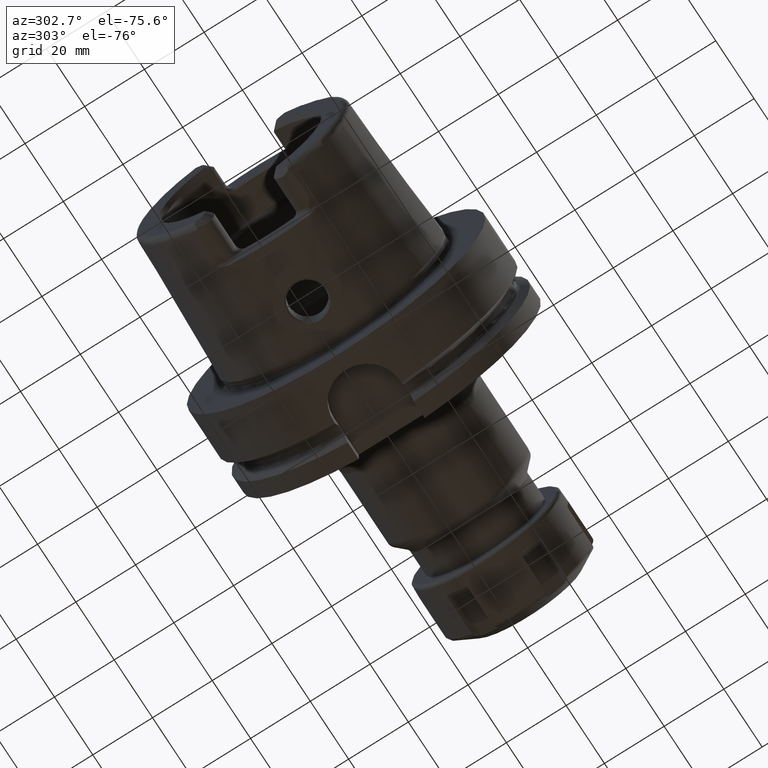
[diagram: clean part render]
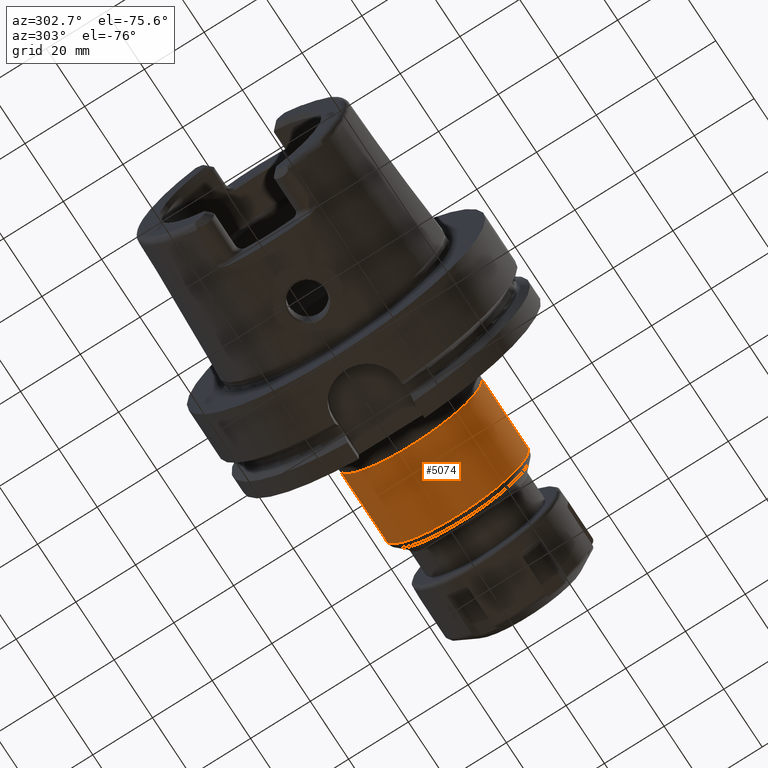
[diagram: same view with one face highlighted and labeled with its STEP entity id]
A machine part, auxiliary view. The second image highlights one B-rep face of the part: STEP entity #5074.
In plain terms, the highlighted cylindrical surface (partial cylindrical patch) has radius 24 mm, axis along (1, 0, 0).
Its self-contained STEP definition (entity closure, byte-faithful):
#1812=CARTESIAN_POINT('',(6.325735931288E1,0.E0,0.E0));
#1813=DIRECTION('',(-1.E0,0.E0,0.E0));
#1814=DIRECTION('',(0.E0,1.E0,0.E0));
#1815=AXIS2_PLACEMENT_3D('',#1812,#1813,#1814);
#1817=DIRECTION('',(-1.E0,0.E0,2.231243130868E-14));
#1818=VECTOR('',#1817,2.425735931288E1);
#1819=CARTESIAN_POINT('',(6.325735931288E1,2.4E1,-1.250021735806E-13));
#1820=LINE('',#1819,#1818);
#1821=CARTESIAN_POINT('',(3.9E1,0.E0,0.E0));
#1822=DIRECTION('',(1.E0,0.E0,0.E0));
#1823=DIRECTION('',(0.E0,-1.E0,0.E0));
#1824=AXIS2_PLACEMENT_3D('',#1821,#1822,#1823);
#1826=DIRECTION('',(-1.E0,0.E0,-2.242654358220E-14));
#1827=VECTOR('',#1826,2.425735931288E1);
#1828=CARTESIAN_POINT('',(6.325735931288E1,-2.4E1,1.242494820195E-13));
#1829=LINE('',#1828,#1827);
#3204=CARTESIAN_POINT('',(3.9E1,-2.4E1,0.E0));
#3205=CARTESIAN_POINT('',(3.9E1,2.4E1,0.E0));
#3206=VERTEX_POINT('',#3204);
#3207=VERTEX_POINT('',#3205);
#3216=CARTESIAN_POINT('',(6.325735931288E1,2.4E1,0.E0));
#3217=CARTESIAN_POINT('',(6.325735931288E1,-2.4E1,0.E0));
#3218=VERTEX_POINT('',#3216);
#3219=VERTEX_POINT('',#3217);
#5063=CARTESIAN_POINT('',(2.61E1,0.E0,0.E0));
#5064=DIRECTION('',(1.E0,0.E0,0.E0));
#5065=DIRECTION('',(0.E0,-1.E0,0.E0));
#5066=AXIS2_PLACEMENT_3D('',#5063,#5064,#5065);
#5067=CYLINDRICAL_SURFACE('',#5066,2.4E1);
#5068=ORIENTED_EDGE('',*,*,#5054,.F.);
#5069=ORIENTED_EDGE('',*,*,#5029,.T.);
#5070=ORIENTED_EDGE('',*,*,#4999,.F.);
#5071=ORIENTED_EDGE('',*,*,#5026,.F.);
#5072=EDGE_LOOP('',(#5068,#5069,#5070,#5071));
#5073=FACE_OUTER_BOUND('',#5072,.F.);
#5074=ADVANCED_FACE('',(#5073),#5067,.T.);
#1816=CIRCLE('',#1815,2.4E1);
#1825=CIRCLE('',#1824,2.4E1);
#4999=EDGE_CURVE('',#3206,#3207,#1825,.T.);
#5026=EDGE_CURVE('',#3219,#3206,#1829,.T.);
#5029=EDGE_CURVE('',#3218,#3207,#1820,.T.);
#5054=EDGE_CURVE('',#3218,#3219,#1816,.T.);